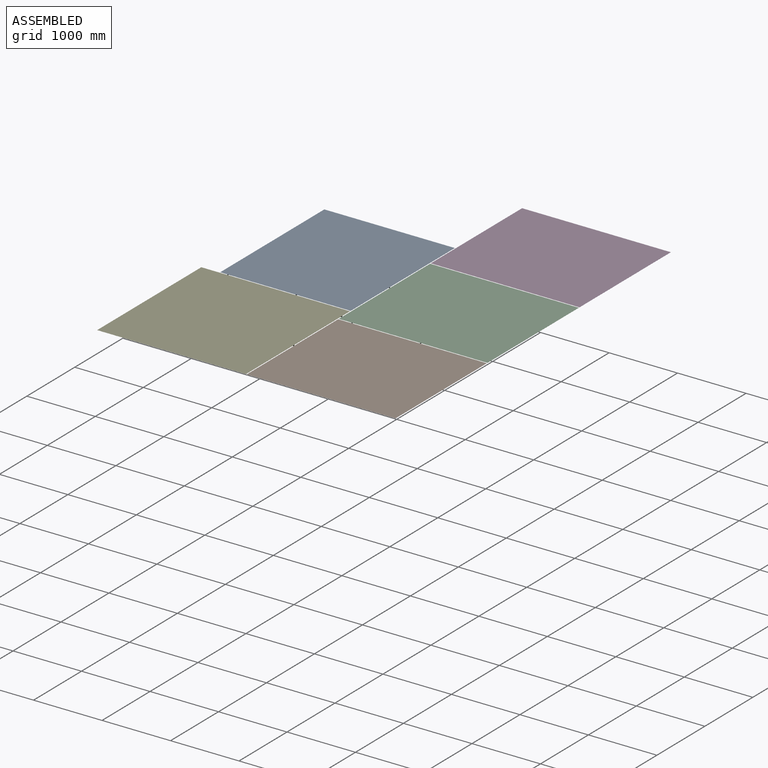
[diagram: assembled view]
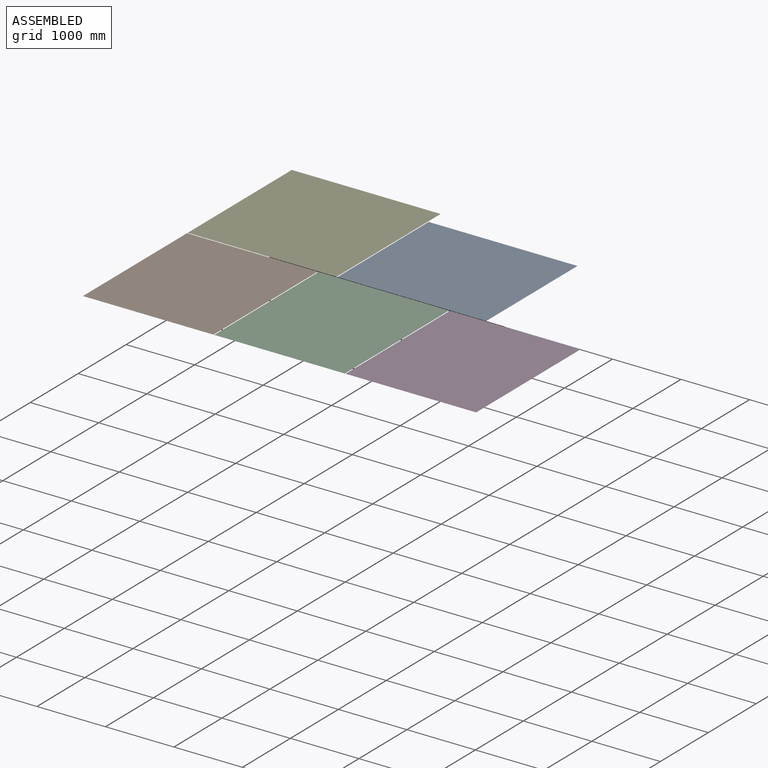
[diagram: assembled view, second angle]
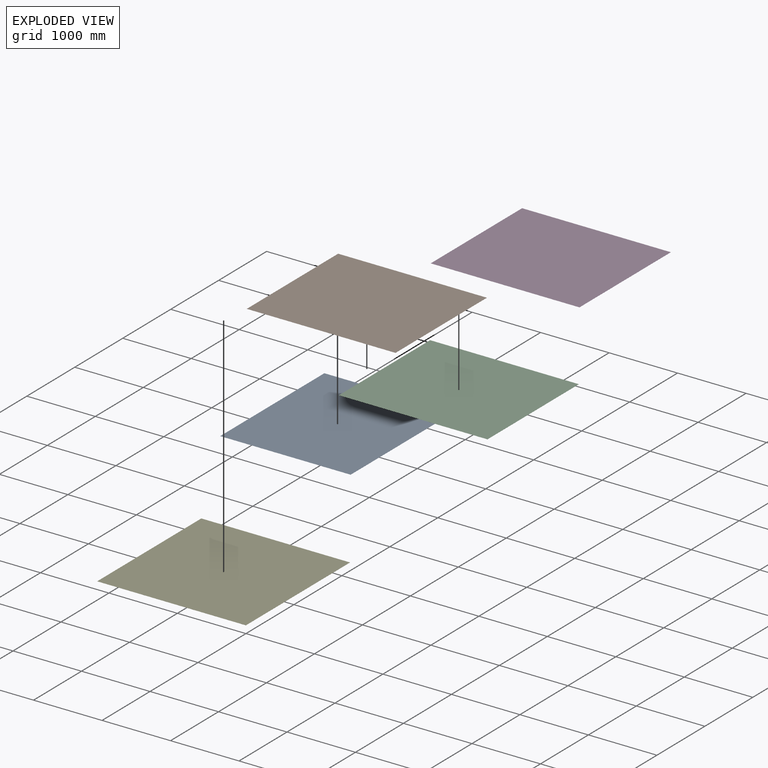
[diagram: exploded view]
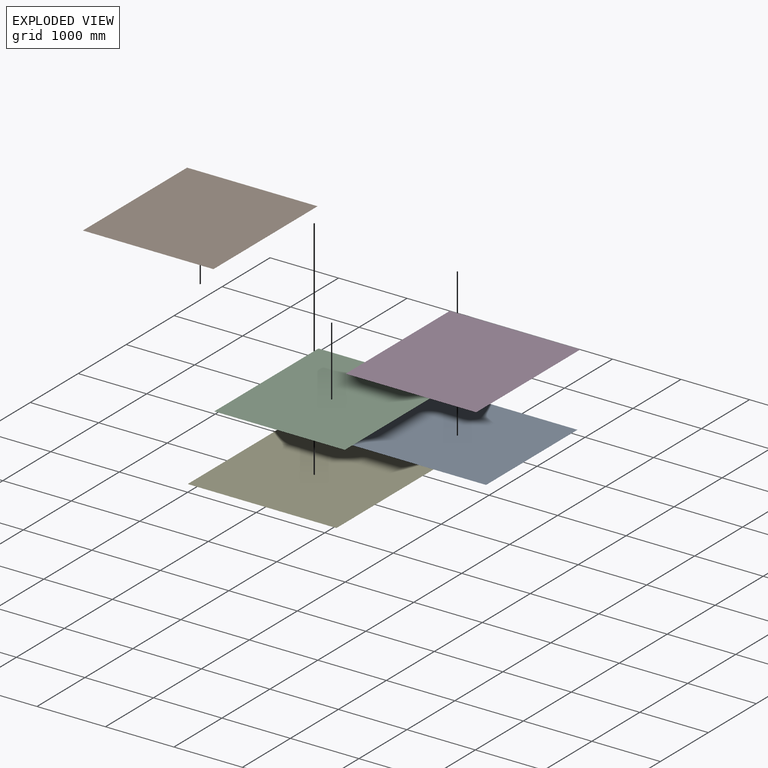
[diagram: exploded view, second angle]
ASSEMBLY  parts=5 mates=4
PART A: 6 faces, bbox 2171.7x0.3x1905 mm
  f0: plane 1905x0.25mm, normal (-1,0,0), area 483.9mm2, adj f1,f3,f4,f5
  f1: plane 2171.7x0.25mm, normal (0,0,-1), area 551.6mm2, adj f0,f2,f4,f5
  f2: plane 1905x0.25mm, normal (1,0,0), area 483.9mm2, adj f1,f3,f4,f5
  f3: plane 2171.7x0.25mm, normal (0,0,1), area 551.6mm2, adj f0,f2,f4,f5
  f4: plane 2171.7x1905mm, normal (0,-1,0), area 4137088.5mm2, adj f0,f1,f2,f3
  f5: plane 2171.7x1905mm, normal (0,1,0), area 4137088.5mm2, adj f0,f1,f2,f3
PART B: same geometry as A
PART C: same geometry as A
PART D: same geometry as A
PART E: 6 faces, bbox 2171.7x2171.7x0.3 mm
  f0: plane 2171.7x0.25mm, normal (0,-1,0), area 551.6mm2, adj f1,f3,f4,f5
  f1: plane 2171.7x0.25mm, normal (1,0,0), area 551.6mm2, adj f0,f2,f4,f5
  f2: plane 2171.7x0.25mm, normal (0,1,0), area 551.6mm2, adj f1,f3,f4,f5
  f3: plane 2171.7x0.25mm, normal (-1,0,0), area 551.6mm2, adj f0,f2,f4,f5
  f4: plane 2171.7x2171.7mm, normal (0,0,1), area 4716280.9mm2, adj f0,f1,f2,f3
  f5: plane 2171.7x2171.7mm, normal (0,0,-1), area 4716280.9mm2, adj f0,f1,f2,f3
PLACE A rot(axis=(-0.58,0.58,-0.58),120deg) t=(-1905,2247.9,-63.5)mm
PLACE B rot(axis=(-1,0,0),90deg) t=(2120.9,0,-63.5)mm
PLACE C rot(axis=(-1,0,0),90deg) t=(2120.9,1917.7,-63.5)mm
PLACE D rot(axis=(-1,0,0),90deg) t=(2120.9,3835.4,-63.5)mm
PLACE E t=(-53.18,44.45,-1905)mm
MATE fastened A.f5 <-> E.f5  axis (0,0,-1) through (0,2184.4,0)mm
MATE fastened D.f5 <-> C.f5  axis (0,0,-1) through (2184.4,3835.4,0)mm
MATE fastened C.f5 <-> B.f5  axis (0,0,-1) through (12.7,1917.7,0)mm
MATE fastened B.f5 <-> E.f5  axis (0,0,-1) through (12.7,0,0)mm
